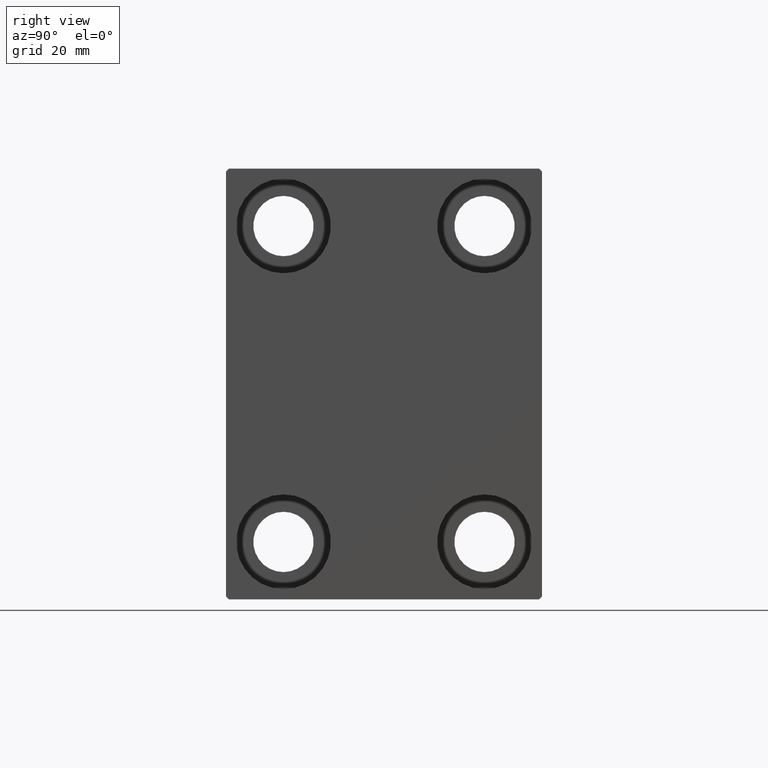
[diagram: clean part render]
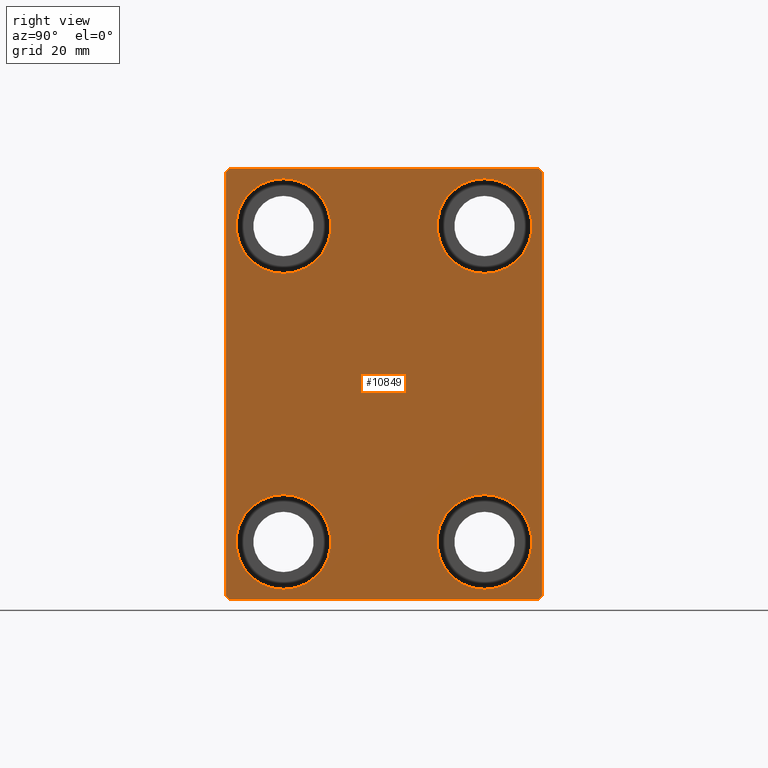
[diagram: same view with one face highlighted and labeled with its STEP entity id]
A machine part, right view. The second image highlights one B-rep face of the part: STEP entity #10849.
In plain terms, the highlighted planar face has unit normal (1, 0, 0).
Its self-contained STEP definition (entity closure, byte-faithful):
#466 = DIRECTION ( 'NONE',  ( 0.000000000000000000, 0.000000000000000000, -1.000000000000000000 ) ) ;
#606 = DIRECTION ( 'NONE',  ( -0.000000000000000000, -0.7071067811865426878, 0.7071067811865524577 ) ) ;
#685 = DIRECTION ( 'NONE',  ( -0.000000000000000000, 0.7071067811865474617, 0.7071067811865474617 ) ) ;
#901 = FACE_BOUND ( 'NONE', #6702, .T. ) ;
#1203 = DIRECTION ( 'NONE',  ( 0.000000000000000000, 0.000000000000000000, 1.000000000000000000 ) ) ;
#1511 = ORIENTED_EDGE ( 'NONE', *, *, #22744, .T. ) ;
#3020 = CARTESIAN_POINT ( 'NONE',  ( 75.00000000000000000, -32.25000000000000711, 32.25000000000000711 ) ) ;
#3346 = ORIENTED_EDGE ( 'NONE', *, *, #18056, .T. ) ;
#3855 = EDGE_CURVE ( 'NONE', #26577, #12783, #3877, .T. ) ;
#3877 = CIRCLE ( 'NONE', #22122, 8.250000000000000000 ) ;
#4124 = VECTOR ( 'NONE', #32404, 1000.000000000000114 ) ;
#4236 = FACE_BOUND ( 'NONE', #21121, .T. ) ;
#5004 = ORIENTED_EDGE ( 'NONE', *, *, #28626, .T. ) ;
#5281 = AXIS2_PLACEMENT_3D ( 'NONE', #28956, #42469, #39808 ) ;
#5645 = VERTEX_POINT ( 'NONE', #6305 ) ;
#5964 = CIRCLE ( 'NONE', #5281, 8.249999999999992895 ) ;
#6061 = DIRECTION ( 'NONE',  ( 0.000000000000000000, 0.000000000000000000, -1.000000000000000000 ) ) ;
#6305 = CARTESIAN_POINT ( 'NONE',  ( 75.00000000000000000, 27.49999999999999645, 37.00000000000001421 ) ) ;
#6702 = EDGE_LOOP ( 'NONE', ( #36111, #18183 ) ) ;
#7074 = CARTESIAN_POINT ( 'NONE',  ( 75.00000000000000000, -17.50000000000000355, -27.50000000000000355 ) ) ;
#7104 = FACE_BOUND ( 'NONE', #11613, .T. ) ;
#7438 = CARTESIAN_POINT ( 'NONE',  ( 75.00000000000000000, 27.49999999999999645, 37.50000000000000711 ) ) ;
#7928 = EDGE_CURVE ( 'NONE', #20408, #28824, #5964, .T. ) ;
#8168 = DIRECTION ( 'NONE',  ( 0.000000000000000000, -9.251858538542970348E-17, 1.000000000000000000 ) ) ;
#8387 = EDGE_CURVE ( 'NONE', #39542, #32453, #9593, .T. ) ;
#8824 = EDGE_CURVE ( 'NONE', #9022, #26361, #22248, .T. ) ;
#8992 = DIRECTION ( 'NONE',  ( 0.000000000000000000, 0.000000000000000000, 1.000000000000000000 ) ) ;
#9022 = VERTEX_POINT ( 'NONE', #38158 ) ;
#9303 = CARTESIAN_POINT ( 'NONE',  ( 75.00000000000000000, 17.50000000000000355, 35.74999999999999289 ) ) ;
#9525 = ORIENTED_EDGE ( 'NONE', *, *, #31273, .T. ) ;
#9575 = EDGE_LOOP ( 'NONE', ( #13640, #3346, #39046, #41101, #1511, #18314, #21129, #29066 ) ) ;
#9593 = LINE ( 'NONE', #22859, #10261 ) ;
#9600 = AXIS2_PLACEMENT_3D ( 'NONE', #30744, #17268, #466 ) ;
#10261 = VECTOR ( 'NONE', #6061, 1000.000000000000000 ) ;
#10689 = CARTESIAN_POINT ( 'NONE',  ( 75.00000000000000000, -27.50000000000000355, 37.00000000000001421 ) ) ;
#10849 = ADVANCED_FACE ( 'NONE', ( #4236, #901, #14382, #7104, #27860 ), #38051, .T. ) ;
#10970 = DIRECTION ( 'NONE',  ( 0.000000000000000000, -1.000000000000000000, -1.261617073437677999E-16 ) ) ;
#11067 = LINE ( 'NONE', #14831, #41333 ) ;
#11613 = EDGE_LOOP ( 'NONE', ( #32132, #9525 ) ) ;
#12129 = CIRCLE ( 'NONE', #18493, 8.250000000000000000 ) ;
#12783 = VERTEX_POINT ( 'NONE', #29429 ) ;
#12837 = EDGE_LOOP ( 'NONE', ( #40808, #16720 ) ) ;
#13320 = VECTOR ( 'NONE', #16201, 1000.000000000000000 ) ;
#13640 = ORIENTED_EDGE ( 'NONE', *, *, #40354, .T. ) ;
#14025 = VERTEX_POINT ( 'NONE', #15478 ) ;
#14278 = EDGE_CURVE ( 'NONE', #26361, #9022, #37219, .T. ) ;
#14382 = FACE_BOUND ( 'NONE', #12837, .T. ) ;
#14812 = CARTESIAN_POINT ( 'NONE',  ( 75.00000000000000000, 27.50000000000000355, -37.50000000000000000 ) ) ;
#14831 = CARTESIAN_POINT ( 'NONE',  ( 75.00000000000000000, 32.25000000000000000, -32.25000000000000000 ) ) ;
#14870 = DIRECTION ( 'NONE',  ( 0.000000000000000000, 0.000000000000000000, 1.000000000000000000 ) ) ;
#14990 = CARTESIAN_POINT ( 'NONE',  ( 75.00000000000000000, -17.49999999999999645, 27.49999999999999645 ) ) ;
#15478 = CARTESIAN_POINT ( 'NONE',  ( 75.00000000000000000, -17.50000000000000355, -35.75000000000000711 ) ) ;
#15787 = CARTESIAN_POINT ( 'NONE',  ( 75.00000000000000000, -17.49999999999999645, 35.74999999999999289 ) ) ;
#16201 = DIRECTION ( 'NONE',  ( 0.000000000000000000, 1.000000000000000000, 0.000000000000000000 ) ) ;
#16243 = CARTESIAN_POINT ( 'NONE',  ( 75.00000000000000000, -17.49999999999999645, 27.49999999999999645 ) ) ;
#16285 = AXIS2_PLACEMENT_3D ( 'NONE', #21075, #27906, #14870 ) ;
#16720 = ORIENTED_EDGE ( 'NONE', *, *, #29366, .T. ) ;
#17268 = DIRECTION ( 'NONE',  ( 1.000000000000000000, 0.000000000000000000, 0.000000000000000000 ) ) ;
#17411 = LINE ( 'NONE', #30876, #25073 ) ;
#17683 = LINE ( 'NONE', #23883, #13320 ) ;
#17710 = DIRECTION ( 'NONE',  ( -1.000000000000000000, -0.000000000000000000, -0.000000000000000000 ) ) ;
#17885 = CARTESIAN_POINT ( 'NONE',  ( 75.00000000000000000, 27.00000000000001066, 37.50000000000000711 ) ) ;
#18056 = EDGE_CURVE ( 'NONE', #32667, #39542, #33068, .T. ) ;
#18183 = ORIENTED_EDGE ( 'NONE', *, *, #14278, .T. ) ;
#18314 = ORIENTED_EDGE ( 'NONE', *, *, #37193, .T. ) ;
#18493 = AXIS2_PLACEMENT_3D ( 'NONE', #42505, #22399, #1203 ) ;
#18811 = ORIENTED_EDGE ( 'NONE', *, *, #3855, .T. ) ;
#19565 = DIRECTION ( 'NONE',  ( 0.000000000000000000, 0.000000000000000000, 1.000000000000000000 ) ) ;
#20408 = VERTEX_POINT ( 'NONE', #26750 ) ;
#21075 = CARTESIAN_POINT ( 'NONE',  ( 75.00000000000000000, 17.49999999999999645, -27.50000000000000355 ) ) ;
#21121 = EDGE_LOOP ( 'NONE', ( #5004, #18811 ) ) ;
#21129 = ORIENTED_EDGE ( 'NONE', *, *, #21255, .T. ) ;
#21255 = EDGE_CURVE ( 'NONE', #34649, #5645, #32013, .T. ) ;
#22065 = DIRECTION ( 'NONE',  ( -1.000000000000000000, -0.000000000000000000, -0.000000000000000000 ) ) ;
#22122 = AXIS2_PLACEMENT_3D ( 'NONE', #28891, #22065, #32001 ) ;
#22248 = CIRCLE ( 'NONE', #33544, 8.249999999999992895 ) ;
#22399 = DIRECTION ( 'NONE',  ( -1.000000000000000000, -0.000000000000000000, -0.000000000000000000 ) ) ;
#22473 = CARTESIAN_POINT ( 'NONE',  ( 75.00000000000000000, 17.50000000000000355, 27.49999999999999645 ) ) ;
#22744 = EDGE_CURVE ( 'NONE', #23624, #40632, #17683, .T. ) ;
#22859 = CARTESIAN_POINT ( 'NONE',  ( 75.00000000000000000, -27.50000000000000355, 37.50000000000000000 ) ) ;
#23624 = VERTEX_POINT ( 'NONE', #43394 ) ;
#23883 = CARTESIAN_POINT ( 'NONE',  ( 75.00000000000000000, -27.50000000000000355, -37.50000000000000000 ) ) ;
#24353 = VECTOR ( 'NONE', #42836, 1000.000000000000114 ) ;
#24389 = VECTOR ( 'NONE', #10970, 1000.000000000000000 ) ;
#24402 = CARTESIAN_POINT ( 'NONE',  ( 75.00000000000000000, 17.49999999999999645, -19.25000000000000355 ) ) ;
#25073 = VECTOR ( 'NONE', #606, 1000.000000000000000 ) ;
#26210 = DIRECTION ( 'NONE',  ( -1.000000000000000000, -0.000000000000000000, -0.000000000000000000 ) ) ;
#26361 = VERTEX_POINT ( 'NONE', #15787 ) ;
#26577 = VERTEX_POINT ( 'NONE', #24402 ) ;
#26750 = CARTESIAN_POINT ( 'NONE',  ( 75.00000000000000000, 17.50000000000000355, 19.25000000000000000 ) ) ;
#27184 = DIRECTION ( 'NONE',  ( 0.000000000000000000, 0.000000000000000000, 1.000000000000000000 ) ) ;
#27763 = LINE ( 'NONE', #7438, #24389 ) ;
#27860 = FACE_OUTER_BOUND ( 'NONE', #9575, .T. ) ;
#27906 = DIRECTION ( 'NONE',  ( -1.000000000000000000, -0.000000000000000000, -0.000000000000000000 ) ) ;
#28626 = EDGE_CURVE ( 'NONE', #12783, #26577, #29673, .T. ) ;
#28824 = VERTEX_POINT ( 'NONE', #9303 ) ;
#28891 = CARTESIAN_POINT ( 'NONE',  ( 75.00000000000000000, 17.49999999999999645, -27.50000000000000355 ) ) ;
#28956 = CARTESIAN_POINT ( 'NONE',  ( 75.00000000000000000, 17.50000000000000355, 27.49999999999999645 ) ) ;
#29066 = ORIENTED_EDGE ( 'NONE', *, *, #41029, .T. ) ;
#29366 = EDGE_CURVE ( 'NONE', #28824, #20408, #38194, .T. ) ;
#29429 = CARTESIAN_POINT ( 'NONE',  ( 75.00000000000000000, 17.49999999999999645, -35.75000000000000711 ) ) ;
#29673 = CIRCLE ( 'NONE', #16285, 8.250000000000000000 ) ;
#30744 = CARTESIAN_POINT ( 'NONE',  ( 75.00000000000000000, 0.000000000000000000, 0.000000000000000000 ) ) ;
#30876 = CARTESIAN_POINT ( 'NONE',  ( 75.00000000000000000, 32.25000000000019185, 32.24999999999975131 ) ) ;
#31064 = VERTEX_POINT ( 'NONE', #17885 ) ;
#31273 = EDGE_CURVE ( 'NONE', #41724, #14025, #12129, .T. ) ;
#31560 = AXIS2_PLACEMENT_3D ( 'NONE', #16243, #39892, #19565 ) ;
#31814 = EDGE_CURVE ( 'NONE', #14025, #41724, #38256, .T. ) ;
#32001 = DIRECTION ( 'NONE',  ( 0.000000000000000000, 0.000000000000000000, 1.000000000000000000 ) ) ;
#32013 = LINE ( 'NONE', #14812, #34454 ) ;
#32132 = ORIENTED_EDGE ( 'NONE', *, *, #31814, .T. ) ;
#32404 = DIRECTION ( 'NONE',  ( 0.000000000000000000, -0.7071067811865474617, -0.7071067811865474617 ) ) ;
#32453 = VERTEX_POINT ( 'NONE', #32820 ) ;
#32667 = VERTEX_POINT ( 'NONE', #32938 ) ;
#32820 = CARTESIAN_POINT ( 'NONE',  ( 75.00000000000000000, -27.50000000000000355, -37.00000000000000000 ) ) ;
#32880 = CARTESIAN_POINT ( 'NONE',  ( 75.00000000000000000, -17.50000000000000355, -19.25000000000000355 ) ) ;
#32938 = CARTESIAN_POINT ( 'NONE',  ( 75.00000000000000000, -27.00000000000001776, 37.50000000000000000 ) ) ;
#33068 = LINE ( 'NONE', #3020, #4124 ) ;
#33544 = AXIS2_PLACEMENT_3D ( 'NONE', #14990, #17710, #8992 ) ;
#34246 = DIRECTION ( 'NONE',  ( -1.000000000000000000, -0.000000000000000000, -0.000000000000000000 ) ) ;
#34454 = VECTOR ( 'NONE', #8168, 1000.000000000000000 ) ;
#34649 = VERTEX_POINT ( 'NONE', #40117 ) ;
#36111 = ORIENTED_EDGE ( 'NONE', *, *, #8824, .T. ) ;
#36200 = LINE ( 'NONE', #36431, #24353 ) ;
#36431 = CARTESIAN_POINT ( 'NONE',  ( 75.00000000000000000, -32.25000000000000000, -32.25000000000000000 ) ) ;
#36919 = CARTESIAN_POINT ( 'NONE',  ( 75.00000000000000000, 27.00000000000000355, -37.50000000000000000 ) ) ;
#37193 = EDGE_CURVE ( 'NONE', #40632, #34649, #11067, .T. ) ;
#37217 = DIRECTION ( 'NONE',  ( 0.000000000000000000, 0.000000000000000000, 1.000000000000000000 ) ) ;
#37219 = CIRCLE ( 'NONE', #31560, 8.249999999999992895 ) ;
#38051 = PLANE ( 'NONE',  #9600 ) ;
#38158 = CARTESIAN_POINT ( 'NONE',  ( 75.00000000000000000, -17.49999999999999645, 19.25000000000000000 ) ) ;
#38194 = CIRCLE ( 'NONE', #40301, 8.249999999999992895 ) ;
#38256 = CIRCLE ( 'NONE', #40362, 8.250000000000000000 ) ;
#39046 = ORIENTED_EDGE ( 'NONE', *, *, #8387, .T. ) ;
#39542 = VERTEX_POINT ( 'NONE', #10689 ) ;
#39808 = DIRECTION ( 'NONE',  ( 0.000000000000000000, 0.000000000000000000, 1.000000000000000000 ) ) ;
#39892 = DIRECTION ( 'NONE',  ( -1.000000000000000000, -0.000000000000000000, -0.000000000000000000 ) ) ;
#40117 = CARTESIAN_POINT ( 'NONE',  ( 75.00000000000000000, 27.50000000000000355, -37.00000000000000000 ) ) ;
#40301 = AXIS2_PLACEMENT_3D ( 'NONE', #22473, #26210, #37217 ) ;
#40354 = EDGE_CURVE ( 'NONE', #31064, #32667, #27763, .T. ) ;
#40362 = AXIS2_PLACEMENT_3D ( 'NONE', #7074, #34246, #27184 ) ;
#40632 = VERTEX_POINT ( 'NONE', #36919 ) ;
#40808 = ORIENTED_EDGE ( 'NONE', *, *, #7928, .T. ) ;
#40877 = EDGE_CURVE ( 'NONE', #32453, #23624, #36200, .T. ) ;
#41029 = EDGE_CURVE ( 'NONE', #5645, #31064, #17411, .T. ) ;
#41101 = ORIENTED_EDGE ( 'NONE', *, *, #40877, .T. ) ;
#41333 = VECTOR ( 'NONE', #685, 1000.000000000000114 ) ;
#41724 = VERTEX_POINT ( 'NONE', #32880 ) ;
#42469 = DIRECTION ( 'NONE',  ( -1.000000000000000000, -0.000000000000000000, -0.000000000000000000 ) ) ;
#42505 = CARTESIAN_POINT ( 'NONE',  ( 75.00000000000000000, -17.50000000000000355, -27.50000000000000355 ) ) ;
#42836 = DIRECTION ( 'NONE',  ( -0.000000000000000000, 0.7071067811865474617, -0.7071067811865474617 ) ) ;
#43394 = CARTESIAN_POINT ( 'NONE',  ( 75.00000000000000000, -27.00000000000000355, -37.50000000000000000 ) ) ;